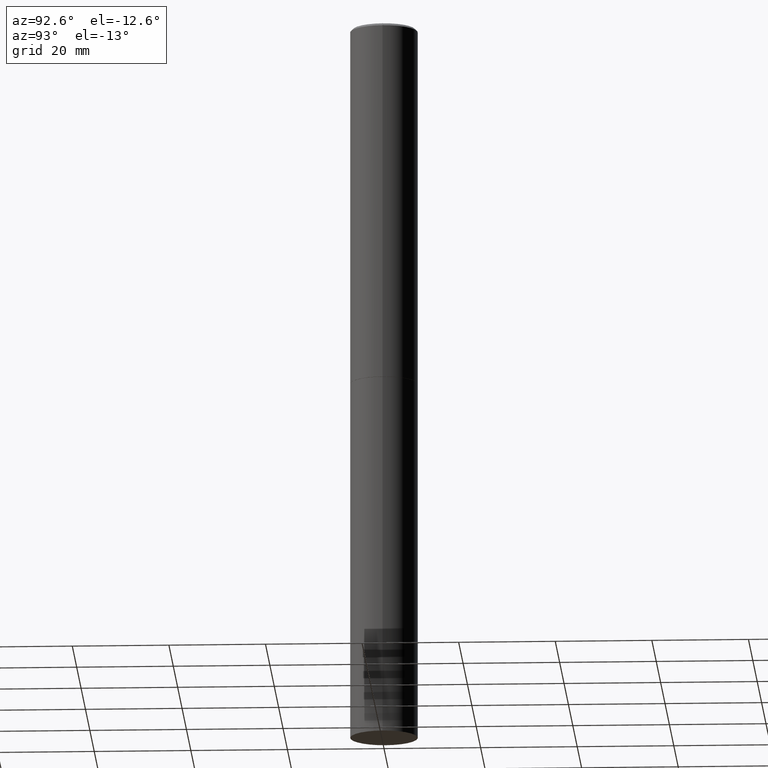
[diagram: clean part render]
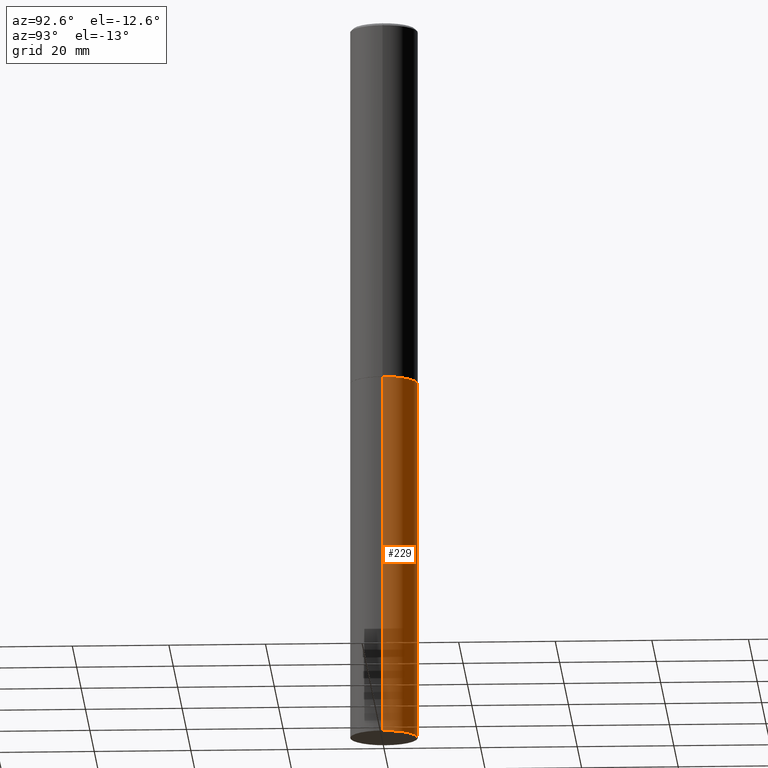
[diagram: same view with one face highlighted and labeled with its STEP entity id]
A machine part, auxiliary view. The second image highlights one B-rep face of the part: STEP entity #229.
In plain terms, the highlighted cylindrical surface (edge-blend (fillet) strip) has radius 7.0002 mm, axis along (-0, 0, 1).
Its self-contained STEP definition (entity closure, byte-faithful):
#6 = DIRECTION ( 'NONE',  ( -2.445468806185136597E-29, 3.491481338843145583E-15, 1.000000000000000000 ) ) ;
#7 = DIRECTION ( 'NONE',  ( 1.000000000000000000, -6.982962677686265922E-15, 0.000000000000000000 ) ) ;
#51 = FACE_OUTER_BOUND ( 'NONE', #192, .T. ) ;
#54 = ORIENTED_EDGE ( 'NONE', *, *, #356, .F. ) ;
#58 = ORIENTED_EDGE ( 'NONE', *, *, #99, .T. ) ;
#60 = DIRECTION ( 'NONE',  ( -2.445468806185136597E-29, 3.491481338843145583E-15, 1.000000000000000000 ) ) ;
#89 = LINE ( 'NONE', #169, #361 ) ;
#90 = CARTESIAN_POINT ( 'NONE',  ( -0.2756000000000000116, -1.350586421811533611E-14, -5.905499999999999972 ) ) ;
#99 = EDGE_CURVE ( 'NONE', #363, #362, #246, .T. ) ;
#100 = CARTESIAN_POINT ( 'NONE',  ( 0.2756000000000000116, -1.924504513970335348E-15, 1.343874319409359987E-29 ) ) ;
#117 = LINE ( 'NONE', #100, #155 ) ;
#120 = DIRECTION ( 'NONE',  ( 1.000000000000000000, -6.982962677686265922E-15, 0.000000000000000000 ) ) ;
#134 = CARTESIAN_POINT ( 'NONE',  ( 0.2756000000000000116, -2.254344756050852692E-14, -5.905499999999999972 ) ) ;
#148 = CARTESIAN_POINT ( 'NONE',  ( 0.2756000000000000116, -1.223380146317248997E-14, -2.952700000000000102 ) ) ;
#155 = VECTOR ( 'NONE', #206, 39.37007874015748143 ) ;
#160 = CARTESIAN_POINT ( 'NONE',  ( -0.2756000000000000116, -1.350586421811533611E-14, -2.952700000000000102 ) ) ;
#169 = CARTESIAN_POINT ( 'NONE',  ( -0.2756000000000000116, 1.958255779754836195E-15, -1.355658510874252007E-29 ) ) ;
#174 = AXIS2_PLACEMENT_3D ( 'NONE', #224, #249, #256 ) ;
#189 = CIRCLE ( 'NONE', #268, 0.2756000000000000116 ) ;
#192 = EDGE_LOOP ( 'NONE', ( #58, #243, #54, #241 ) ) ;
#205 = DIRECTION ( 'NONE',  ( -2.445468806185136877E-29, 3.491481338843145188E-15, 1.000000000000000000 ) ) ;
#206 = DIRECTION ( 'NONE',  ( -2.445468806185136877E-29, 3.491481338843145188E-15, 1.000000000000000000 ) ) ;
#224 = CARTESIAN_POINT ( 'NONE',  ( 0.000000000000000000, 0.000000000000000000, 0.000000000000000000 ) ) ;
#229 = ADVANCED_FACE ( 'NONE', ( #51 ), #340, .T. ) ;
#237 = VERTEX_POINT ( 'NONE', #148 ) ;
#241 = ORIENTED_EDGE ( 'NONE', *, *, #258, .F. ) ;
#243 = ORIENTED_EDGE ( 'NONE', *, *, #338, .T. ) ;
#246 = CIRCLE ( 'NONE', #266, 0.2756000000000000116 ) ;
#249 = DIRECTION ( 'NONE',  ( -2.445468806185136597E-29, 3.491481338843145583E-15, 1.000000000000000000 ) ) ;
#252 = CARTESIAN_POINT ( 'NONE',  ( 7.220735744022852519E-29, -1.030929694920215502E-14, -2.952700000000000102 ) ) ;
#256 = DIRECTION ( 'NONE',  ( 1.000000000000000000, -6.982962677686267499E-15, 4.876176775795935793E-29 ) ) ;
#258 = EDGE_CURVE ( 'NONE', #363, #237, #117, .T. ) ;
#266 = AXIS2_PLACEMENT_3D ( 'NONE', #354, #60, #7 ) ;
#268 = AXIS2_PLACEMENT_3D ( 'NONE', #252, #6, #120 ) ;
#273 = VERTEX_POINT ( 'NONE', #160 ) ;
#338 = EDGE_CURVE ( 'NONE', #362, #273, #89, .T. ) ;
#340 = CYLINDRICAL_SURFACE ( 'NONE', #174, 0.2756000000000000116 ) ;
#354 = CARTESIAN_POINT ( 'NONE',  ( 1.444171603492632270E-28, -2.061894304653819197E-14, -5.905499999999999972 ) ) ;
#356 = EDGE_CURVE ( 'NONE', #237, #273, #189, .T. ) ;
#361 = VECTOR ( 'NONE', #205, 39.37007874015748143 ) ;
#362 = VERTEX_POINT ( 'NONE', #90 ) ;
#363 = VERTEX_POINT ( 'NONE', #134 ) ;